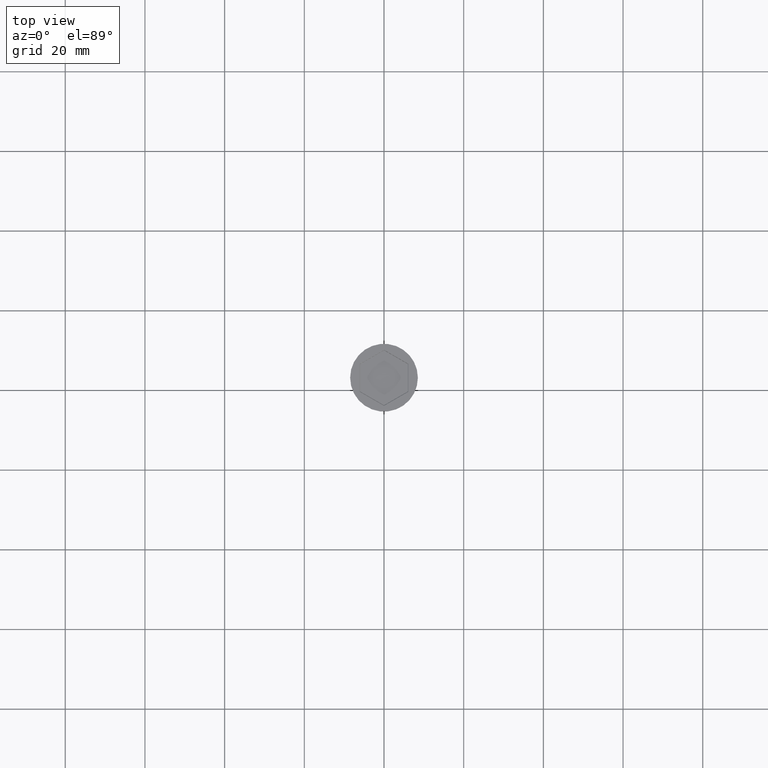
[diagram: clean part render]
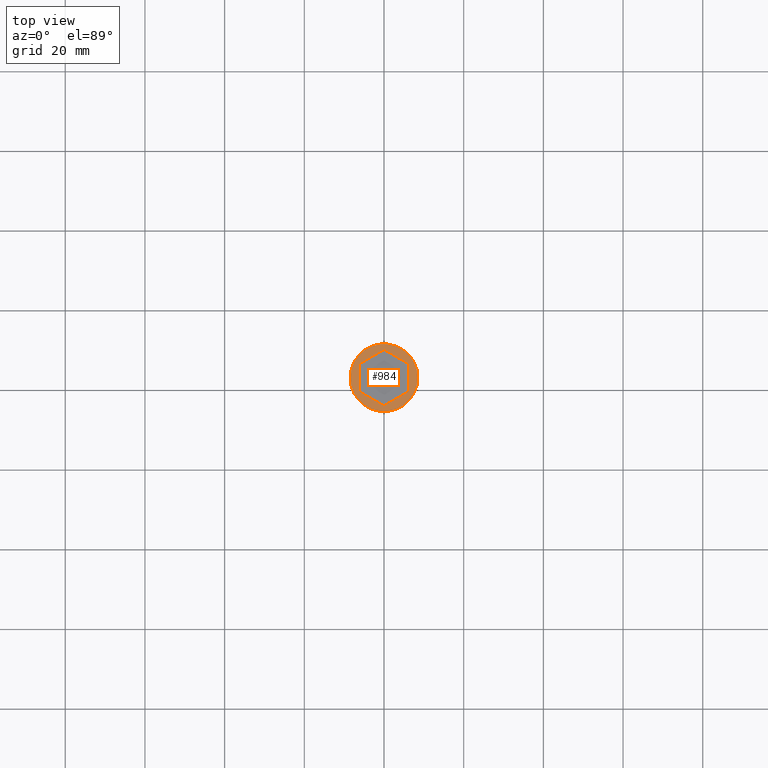
[diagram: same view with one face highlighted and labeled with its STEP entity id]
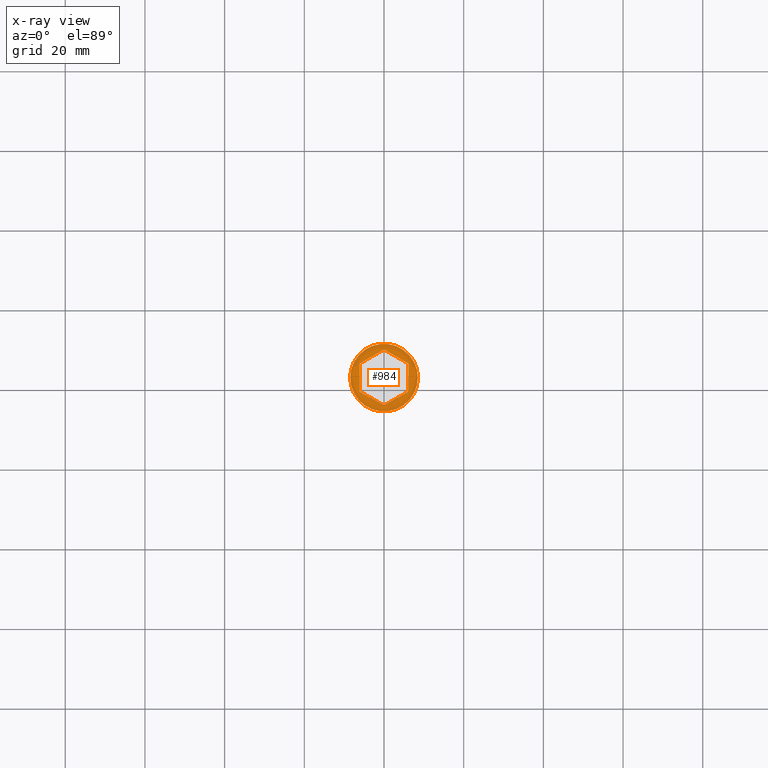
[diagram: x-ray of the same camera — body ghosted, the highlighted face saturated]
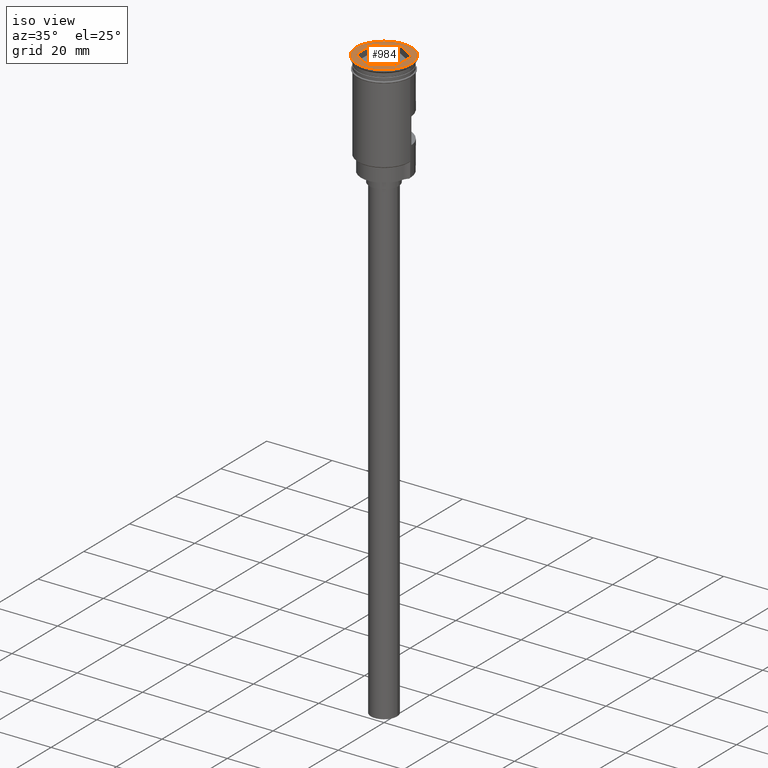
[diagram: same view with one face highlighted and labeled with its STEP entity id]
A machine part, top view. The second image highlights one B-rep face of the part: STEP entity #984.
The next image is the same camera in x-ray: the body ghosted, the highlighted face saturated — about 0% of this face is hidden behind the body in this view.
A second angle (iso view) of the same face is appended — the face is thin or edge-on in the first view.
In plain terms, the highlighted planar face has unit normal (0, -0, 1).
Its self-contained STEP definition (entity closure, byte-faithful):
#11 = EDGE_CURVE ( 'NONE', #499, #194, #887, .T. ) ;
#36 = ORIENTED_EDGE ( 'NONE', *, *, #303, .T. ) ;
#118 = DIRECTION ( 'NONE',  ( -0.8660254037844385966, -0.5000000000000002220, 0.000000000000000000 ) ) ;
#135 = CARTESIAN_POINT ( 'NONE',  ( 6.100000000000007638, -3.521836642056722866, 0.000000000000000000 ) ) ;
#146 = LINE ( 'NONE', #748, #461 ) ;
#172 = ORIENTED_EDGE ( 'NONE', *, *, #635, .T. ) ;
#188 = ORIENTED_EDGE ( 'NONE', *, *, #272, .T. ) ;
#194 = VERTEX_POINT ( 'NONE', #1087 ) ;
#219 = VERTEX_POINT ( 'NONE', #241 ) ;
#231 = DIRECTION ( 'NONE',  ( 0.8660254037844385966, 0.5000000000000002220, 0.000000000000000000 ) ) ;
#241 = CARTESIAN_POINT ( 'NONE',  ( -9.509961900721253228E-16, 7.043673284113440403, 0.000000000000000000 ) ) ;
#272 = EDGE_CURVE ( 'NONE', #628, #1093, #844, .T. ) ;
#291 = CARTESIAN_POINT ( 'NONE',  ( -6.050000000000004263, -3.550704155516205773, 0.000000000000000000 ) ) ;
#302 = EDGE_CURVE ( 'NONE', #194, #1026, #1573, .T. ) ;
#303 = EDGE_CURVE ( 'NONE', #1026, #219, #837, .T. ) ;
#308 = VECTOR ( 'NONE', #472, 1000.000000000000000 ) ;
#325 = DIRECTION ( 'NONE',  ( 1.000000000000000000, 0.000000000000000000, 0.000000000000000000 ) ) ;
#339 = FACE_OUTER_BOUND ( 'NONE', #1405, .T. ) ;
#345 = DIRECTION ( 'NONE',  ( -0.000000000000000000, -0.000000000000000000, 1.000000000000000000 ) ) ;
#359 = VECTOR ( 'NONE', #1456, 1000.000000000000000 ) ;
#437 = CIRCLE ( 'NONE', #1270, 8.500000000000000000 ) ;
#449 = PLANE ( 'NONE',  #1318 ) ;
#461 = VECTOR ( 'NONE', #118, 999.9999999999998863 ) ;
#472 = DIRECTION ( 'NONE',  ( 0.000000000000000000, -1.000000000000000000, -0.000000000000000000 ) ) ;
#492 = ORIENTED_EDGE ( 'NONE', *, *, #886, .T. ) ;
#499 = VERTEX_POINT ( 'NONE', #1408 ) ;
#519 = EDGE_LOOP ( 'NONE', ( #996, #36, #492, #188, #172, #833 ) ) ;
#560 = VECTOR ( 'NONE', #231, 999.9999999999998863 ) ;
#569 = CARTESIAN_POINT ( 'NONE',  ( 0.000000000000000000, 0.000000000000000000, 0.000000000000000000 ) ) ;
#579 = EDGE_CURVE ( 'NONE', #1058, #1532, #437, .T. ) ;
#591 = DIRECTION ( 'NONE',  ( 1.000000000000000000, 0.000000000000000000, 0.000000000000000000 ) ) ;
#628 = VERTEX_POINT ( 'NONE', #1356 ) ;
#635 = EDGE_CURVE ( 'NONE', #1093, #499, #146, .T. ) ;
#672 = CIRCLE ( 'NONE', #1063, 8.500000000000000000 ) ;
#748 = CARTESIAN_POINT ( 'NONE',  ( 0.05000000000000536654, -7.014805770653961048, 0.000000000000000000 ) ) ;
#762 = ORIENTED_EDGE ( 'NONE', *, *, #1488, .T. ) ;
#833 = ORIENTED_EDGE ( 'NONE', *, *, #11, .T. ) ;
#837 = LINE ( 'NONE', #1584, #560 ) ;
#842 = DIRECTION ( 'NONE',  ( -0.000000000000000000, -0.000000000000000000, 1.000000000000000000 ) ) ;
#844 = LINE ( 'NONE', #1238, #308 ) ;
#886 = EDGE_CURVE ( 'NONE', #219, #628, #1044, .T. ) ;
#887 = LINE ( 'NONE', #291, #926 ) ;
#922 = CARTESIAN_POINT ( 'NONE',  ( 6.050000000000003375, 3.550704155516203553, 0.000000000000000000 ) ) ;
#926 = VECTOR ( 'NONE', #1375, 999.9999999999998863 ) ;
#938 = CARTESIAN_POINT ( 'NONE',  ( 8.500000000000000000, 0.000000000000000000, 0.000000000000000000 ) ) ;
#945 = DIRECTION ( 'NONE',  ( 1.000000000000000000, 0.000000000000000000, 0.000000000000000000 ) ) ;
#960 = CARTESIAN_POINT ( 'NONE',  ( -6.100000000000008527, 3.464101615137752166, 0.000000000000000000 ) ) ;
#984 = ADVANCED_FACE ( 'NONE', ( #1075, #339 ), #449, .T. ) ;
#996 = ORIENTED_EDGE ( 'NONE', *, *, #302, .T. ) ;
#1026 = VERTEX_POINT ( 'NONE', #1059 ) ;
#1044 = LINE ( 'NONE', #922, #1549 ) ;
#1058 = VERTEX_POINT ( 'NONE', #938 ) ;
#1059 = CARTESIAN_POINT ( 'NONE',  ( -6.100000000000008527, 3.521836642056717537, 0.000000000000000000 ) ) ;
#1063 = AXIS2_PLACEMENT_3D ( 'NONE', #1471, #345, #591 ) ;
#1070 = CARTESIAN_POINT ( 'NONE',  ( 0.000000000000000000, 0.000000000000000000, 0.000000000000000000 ) ) ;
#1075 = FACE_BOUND ( 'NONE', #519, .T. ) ;
#1087 = CARTESIAN_POINT ( 'NONE',  ( -6.100000000000007638, -3.521836642056722866, 0.000000000000000000 ) ) ;
#1088 = CARTESIAN_POINT ( 'NONE',  ( -8.500000000000000000, 1.040949779275250140E-15, 0.000000000000000000 ) ) ;
#1093 = VERTEX_POINT ( 'NONE', #135 ) ;
#1229 = ORIENTED_EDGE ( 'NONE', *, *, #579, .T. ) ;
#1238 = CARTESIAN_POINT ( 'NONE',  ( 6.100000000000007638, -3.464101615137756607, 0.000000000000000000 ) ) ;
#1270 = AXIS2_PLACEMENT_3D ( 'NONE', #1070, #842, #325 ) ;
#1298 = DIRECTION ( 'NONE',  ( 0.8660254037844387076, -0.4999999999999998335, 0.000000000000000000 ) ) ;
#1318 = AXIS2_PLACEMENT_3D ( 'NONE', #569, #1426, #945 ) ;
#1356 = CARTESIAN_POINT ( 'NONE',  ( 6.100000000000007638, 3.521836642056720201, 0.000000000000000000 ) ) ;
#1375 = DIRECTION ( 'NONE',  ( -0.8660254037844385966, 0.5000000000000002220, 0.000000000000000000 ) ) ;
#1405 = EDGE_LOOP ( 'NONE', ( #1229, #762 ) ) ;
#1408 = CARTESIAN_POINT ( 'NONE',  ( 6.606856988583603042E-17, -7.043673284113445732, 0.000000000000000000 ) ) ;
#1426 = DIRECTION ( 'NONE',  ( 0.000000000000000000, -0.000000000000000000, 1.000000000000000000 ) ) ;
#1456 = DIRECTION ( 'NONE',  ( -1.251928832280966188E-16, 1.000000000000000000, 0.000000000000000000 ) ) ;
#1471 = CARTESIAN_POINT ( 'NONE',  ( 0.000000000000000000, 0.000000000000000000, 0.000000000000000000 ) ) ;
#1488 = EDGE_CURVE ( 'NONE', #1532, #1058, #672, .T. ) ;
#1532 = VERTEX_POINT ( 'NONE', #1088 ) ;
#1549 = VECTOR ( 'NONE', #1298, 1000.000000000000000 ) ;
#1573 = LINE ( 'NONE', #960, #359 ) ;
#1584 = CARTESIAN_POINT ( 'NONE',  ( -0.05000000000000349998, 7.014805770653958383, 0.000000000000000000 ) ) ;